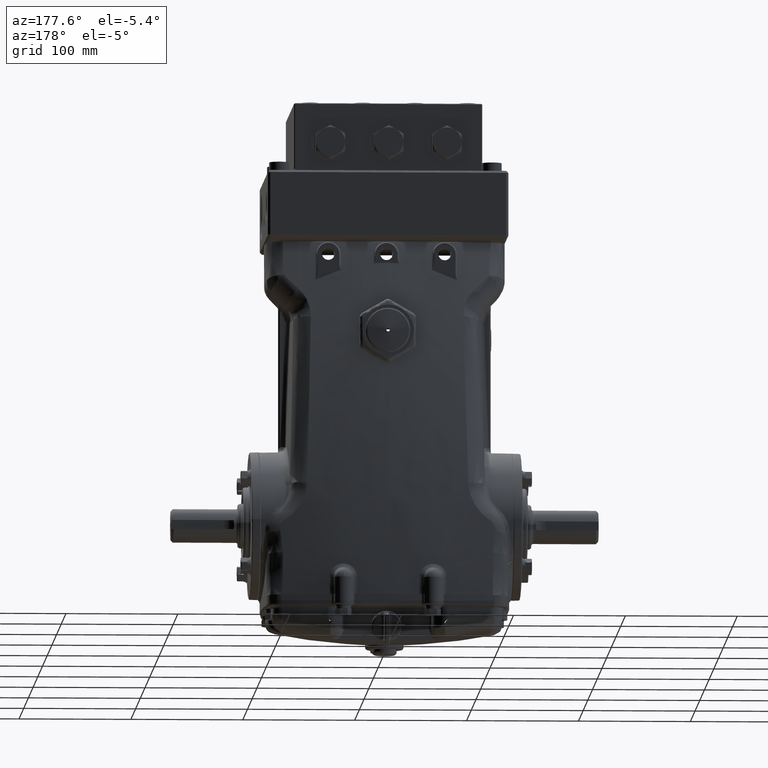
[diagram: clean part render]
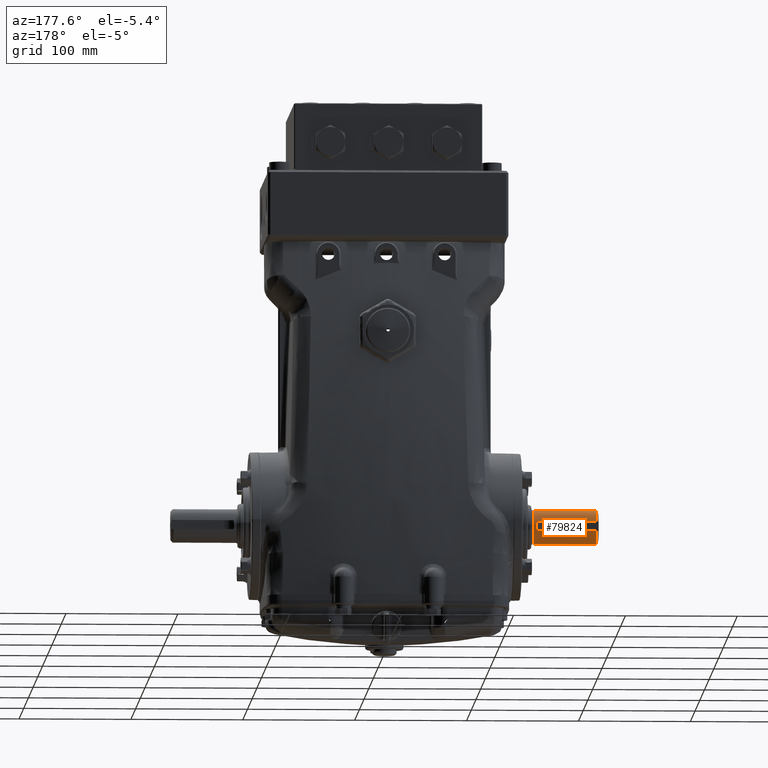
[diagram: same view with one face highlighted and labeled with its STEP entity id]
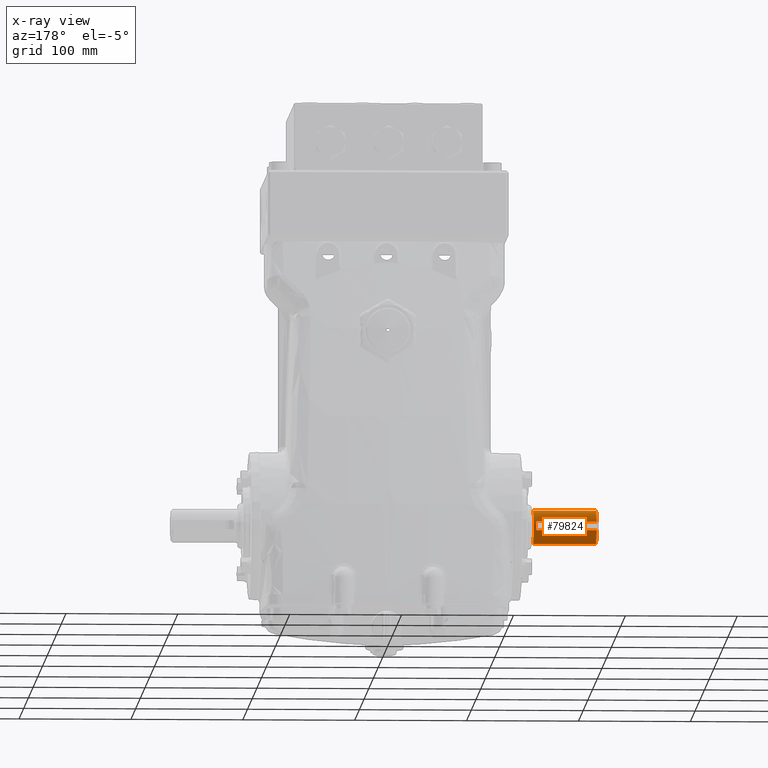
[diagram: x-ray of the same camera — body ghosted, the highlighted face saturated]
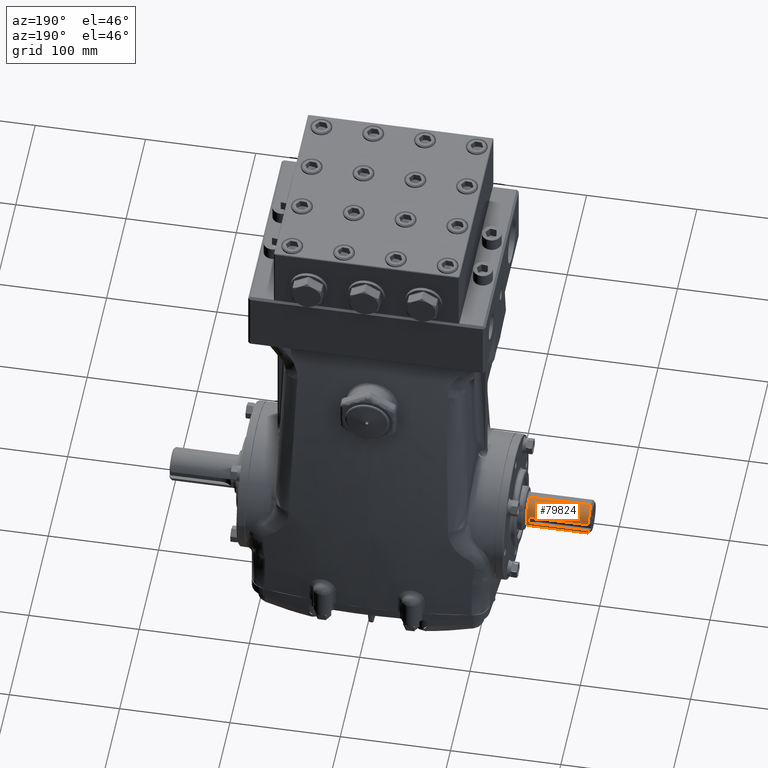
[diagram: same view with one face highlighted and labeled with its STEP entity id]
A machine part, auxiliary view. The second image highlights one B-rep face of the part: STEP entity #79824.
The next image is the same camera in x-ray: the body ghosted, the highlighted face saturated — about 0% of this face is hidden behind the body in this view.
A second angle (auxiliary view) of the same face is appended — the face is thin or edge-on in the first view.
In plain terms, the highlighted cylindrical surface (edge-blend (fillet) strip) has radius 15 mm, axis along (1, -0, -0).
Its self-contained STEP definition (entity closure, byte-faithful):
#186 = CARTESIAN_POINT ( 'NONE',  ( -5.511426768043749647, 1.025371910540391118, -0.05347374383902767092 ) ) ;
#188 = EDGE_CURVE ( 'NONE', #63651, #36751, #57352, .T. ) ;
#5775 = EDGE_CURVE ( 'NONE', #59045, #41685, #33671, .T. ) ;
#5935 = EDGE_LOOP ( 'NONE', ( #39783, #29486, #23810, #69174, #10902, #77877, #65624, #47014 ) ) ;
#5959 = DIRECTION ( 'NONE',  ( -1.000000000000000000, 0.000000000000000000, 0.000000000000000000 ) ) ;
#6119 = CARTESIAN_POINT ( 'NONE',  ( -5.523141920906178726, 1.013176608008374169, -0.1324811871124109697 ) ) ;
#8595 = VERTEX_POINT ( 'NONE', #38644 ) ;
#10077 = EDGE_CURVE ( 'NONE', #8595, #41844, #72350, .T. ) ;
#10364 = DIRECTION ( 'NONE',  ( 1.000000000000000000, -0.000000000000000000, -0.000000000000000000 ) ) ;
#10722 = VECTOR ( 'NONE', #5959, 39.37007874015748143 ) ;
#10902 = ORIENTED_EDGE ( 'NONE', *, *, #5775, .T. ) ;
#11286 = CARTESIAN_POINT ( 'NONE',  ( -7.641794391028926547, 0.4370930789018504514, -1.077440848701185465E-12 ) ) ;
#14411 = VERTEX_POINT ( 'NONE', #83697 ) ;
#15021 = AXIS2_PLACEMENT_3D ( 'NONE', #86571, #43532, #29977 ) ;
#16640 = CIRCLE ( 'NONE', #15021, 0.5905511811023621549 ) ;
#17627 = DIRECTION ( 'NONE',  ( 0.000000000000000000, -9.251858538542971828E-16, 1.000000000000000000 ) ) ;
#18873 = EDGE_CURVE ( 'NONE', #36751, #8595, #33355, .T. ) ;
#19644 = DIRECTION ( 'NONE',  ( 1.000000000000000000, 0.000000000000000000, 0.000000000000000000 ) ) ;
#20578 = CARTESIAN_POINT ( 'NONE',  ( -5.509305118540731350, 1.027647491846344963, -0.01324726919910683767 ) ) ;
#21468 = CARTESIAN_POINT ( 'NONE',  ( -5.530390257527830755, 1.006259704681415901, 0.1574803149595524754 ) ) ;
#23810 = ORIENTED_EDGE ( 'NONE', *, *, #60582, .T. ) ;
#24408 = CARTESIAN_POINT ( 'NONE',  ( -5.530390257527830755, 1.006259704681415901, 0.1574803149595524754 ) ) ;
#24412 = CARTESIAN_POINT ( 'NONE',  ( -5.437069981580106237, 0.4370930789018505624, 0.5905511811012847945 ) ) ;
#29486 = ORIENTED_EDGE ( 'NONE', *, *, #10077, .T. ) ;
#29977 = DIRECTION ( 'NONE',  ( 0.000000000000000000, 0.000000000000000000, -1.000000000000000000 ) ) ;
#30689 = CARTESIAN_POINT ( 'NONE',  ( -7.720534548509240480, 1.006259704681415901, 0.1574803149595524754 ) ) ;
#33355 = CIRCLE ( 'NONE', #44888, 0.5905511811023621549 ) ;
#33671 = CIRCLE ( 'NONE', #81359, 0.5905511811023621549 ) ;
#34162 = CARTESIAN_POINT ( 'NONE',  ( -5.512724063559145904, 1.023988959701986667, -0.06695421612606036743 ) ) ;
#34183 = EDGE_CURVE ( 'NONE', #14411, #41685, #55223, .T. ) ;
#36751 = VERTEX_POINT ( 'NONE', #81385 ) ;
#37078 = DIRECTION ( 'NONE',  ( 0.000000000000000000, 0.000000000000000000, -1.000000000000000000 ) ) ;
#38427 = DIRECTION ( 'NONE',  ( 1.000000000000000000, -0.000000000000000000, -0.000000000000000000 ) ) ;
#38454 = DIRECTION ( 'NONE',  ( 1.000000000000000000, 0.000000000000000000, 0.000000000000000000 ) ) ;
#38644 = CARTESIAN_POINT ( 'NONE',  ( -7.641794391028926547, 0.4370930789018505624, 0.5905511811012847945 ) ) ;
#39119 = DIRECTION ( 'NONE',  ( 0.000000000000000000, 0.000000000000000000, 1.000000000000000000 ) ) ;
#39783 = ORIENTED_EDGE ( 'NONE', *, *, #18873, .T. ) ;
#41685 = VERTEX_POINT ( 'NONE', #61981 ) ;
#41844 = VERTEX_POINT ( 'NONE', #24412 ) ;
#43532 = DIRECTION ( 'NONE',  ( -1.000000000000000000, -0.000000000000000000, -0.000000000000000000 ) ) ;
#44888 = AXIS2_PLACEMENT_3D ( 'NONE', #11286, #38454, #17627 ) ;
#45886 = CARTESIAN_POINT ( 'NONE',  ( -7.641794391028926547, 0.4370930789018504514, -1.077440848701185465E-12 ) ) ;
#46571 = EDGE_CURVE ( 'NONE', #14411, #63651, #53847, .T. ) ;
#47014 = ORIENTED_EDGE ( 'NONE', *, *, #188, .T. ) ;
#47102 = CARTESIAN_POINT ( 'NONE',  ( -7.720534548509240480, 1.006259704681415901, -0.1574803149617073628 ) ) ;
#47617 = EDGE_CURVE ( 'NONE', #59045, #76156, #48057, .T. ) ;
#48057 = LINE ( 'NONE', #70212, #58510 ) ;
#49045 = CARTESIAN_POINT ( 'NONE',  ( -5.509722346978901619, 1.027195843040043854, -0.02664869209875220246 ) ) ;
#51507 = CARTESIAN_POINT ( 'NONE',  ( -7.720534548509240480, 0.4370930789018505624, 0.5905511811012847945 ) ) ;
#53847 = B_SPLINE_CURVE_WITH_KNOTS ( 'NONE', 3,
 ( #62178, #6119, #82587, #34162, #186, #49045, #20578, #69857, #76684, #83039, #83484, #21468 ),
 .UNSPECIFIED., .F., .F.,
 ( 4, 2, 2, 2, 2, 4 ),
 ( 0.02812212069516374299, 0.03016094931653722291, 0.03118036362722395594, 0.03219977793791069243, 0.03423860655928415847, 0.03627743518065762451 ),
 .UNSPECIFIED. ) ;
#55223 = LINE ( 'NONE', #47102, #10722 ) ;
#56171 = DIRECTION ( 'NONE',  ( 1.000000000000000000, -0.000000000000000000, -0.000000000000000000 ) ) ;
#57352 = LINE ( 'NONE', #30689, #60130 ) ;
#57396 = FACE_OUTER_BOUND ( 'NONE', #5935, .T. ) ;
#58510 = VECTOR ( 'NONE', #56171, 39.37007874015748143 ) ;
#59045 = VERTEX_POINT ( 'NONE', #74790 ) ;
#59585 = AXIS2_PLACEMENT_3D ( 'NONE', #85065, #38427, #37078 ) ;
#60130 = VECTOR ( 'NONE', #85021, 39.37007874015748143 ) ;
#60582 = EDGE_CURVE ( 'NONE', #41844, #76156, #16640, .T. ) ;
#61413 = VECTOR ( 'NONE', #10364, 39.37007874015748143 ) ;
#61981 = CARTESIAN_POINT ( 'NONE',  ( -7.641794391028926547, 1.006259704681415901, -0.1574803149617073628 ) ) ;
#62178 = CARTESIAN_POINT ( 'NONE',  ( -5.530390257527830755, 1.006259704681415901, -0.1574803149617073628 ) ) ;
#63651 = VERTEX_POINT ( 'NONE', #24408 ) ;
#65624 = ORIENTED_EDGE ( 'NONE', *, *, #46571, .T. ) ;
#69174 = ORIENTED_EDGE ( 'NONE', *, *, #47617, .F. ) ;
#69857 = CARTESIAN_POINT ( 'NONE',  ( -5.509314158796795979, 1.027637744163119704, 0.02692443100418795768 ) ) ;
#70212 = CARTESIAN_POINT ( 'NONE',  ( -7.720534548509240480, 0.4370930789018504514, -0.5905511811034396263 ) ) ;
#72350 = LINE ( 'NONE', #51507, #61413 ) ;
#72796 = CYLINDRICAL_SURFACE ( 'NONE', #59585, 0.5905511811023621549 ) ;
#74790 = CARTESIAN_POINT ( 'NONE',  ( -7.641794391028926547, 0.4370930789018504514, -0.5905511811034396263 ) ) ;
#76156 = VERTEX_POINT ( 'NONE', #85359 ) ;
#76684 = CARTESIAN_POINT ( 'NONE',  ( -5.510984444537093907, 1.025807771609500207, 0.05373475901904012364 ) ) ;
#77877 = ORIENTED_EDGE ( 'NONE', *, *, #34183, .F. ) ;
#79824 = ADVANCED_FACE ( 'NONE', ( #57396 ), #72796, .T. ) ;
#81359 = AXIS2_PLACEMENT_3D ( 'NONE', #45886, #19644, #39119 ) ;
#81385 = CARTESIAN_POINT ( 'NONE',  ( -7.641794391028926547, 1.006259704681415901, 0.1574803149595524754 ) ) ;
#82587 = CARTESIAN_POINT ( 'NONE',  ( -5.517936097106738380, 1.018538456523675917, -0.1067133926298575175 ) ) ;
#83039 = CARTESIAN_POINT ( 'NONE',  ( -5.517975752086124785, 1.018497390392286484, 0.1069646685448710777 ) ) ;
#83484 = CARTESIAN_POINT ( 'NONE',  ( -5.523198650169574009, 1.013122472714829359, 0.1326768433252575319 ) ) ;
#83697 = CARTESIAN_POINT ( 'NONE',  ( -5.530390257527830755, 1.006259704681415901, -0.1574803149617073628 ) ) ;
#85021 = DIRECTION ( 'NONE',  ( -1.000000000000000000, 0.000000000000000000, 0.000000000000000000 ) ) ;
#85065 = CARTESIAN_POINT ( 'NONE',  ( -7.720534548509240480, 0.4370930789018504514, -1.077440848701185465E-12 ) ) ;
#85359 = CARTESIAN_POINT ( 'NONE',  ( -5.437069981580106237, 0.4370930789018504514, -0.5905511811034396263 ) ) ;
#86571 = CARTESIAN_POINT ( 'NONE',  ( -5.437069981580106237, 0.4370930789018504514, -1.077440848701185465E-12 ) ) ;